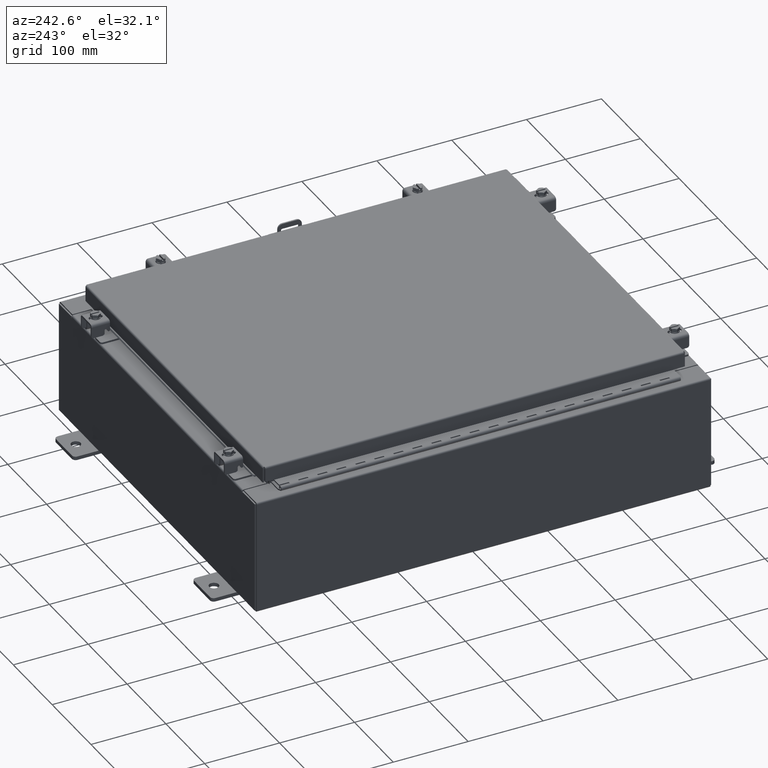
[diagram: clean part render]
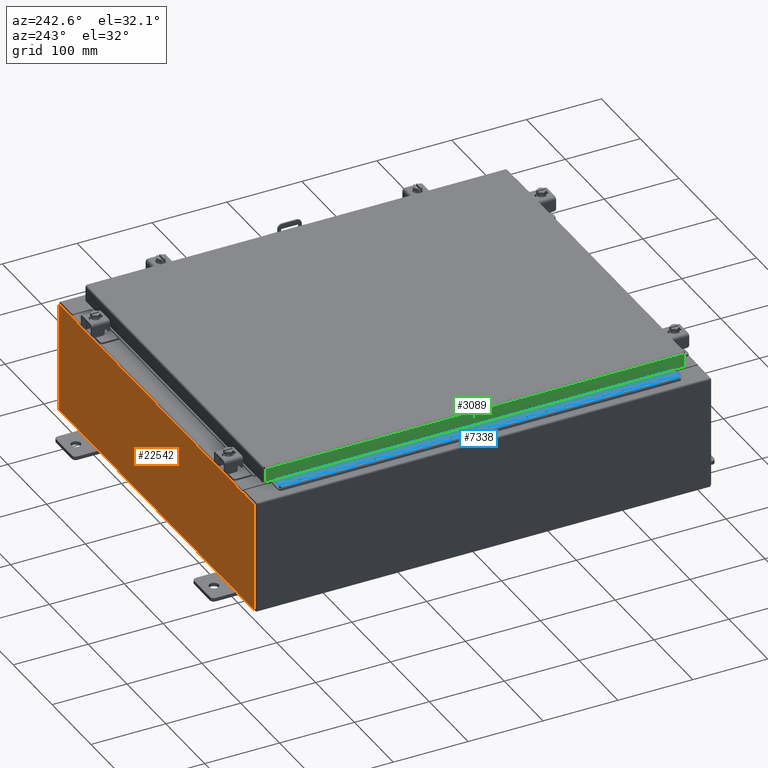
[diagram: same view with three faces highlighted in distinct colors, each labeled with its STEP entity id]
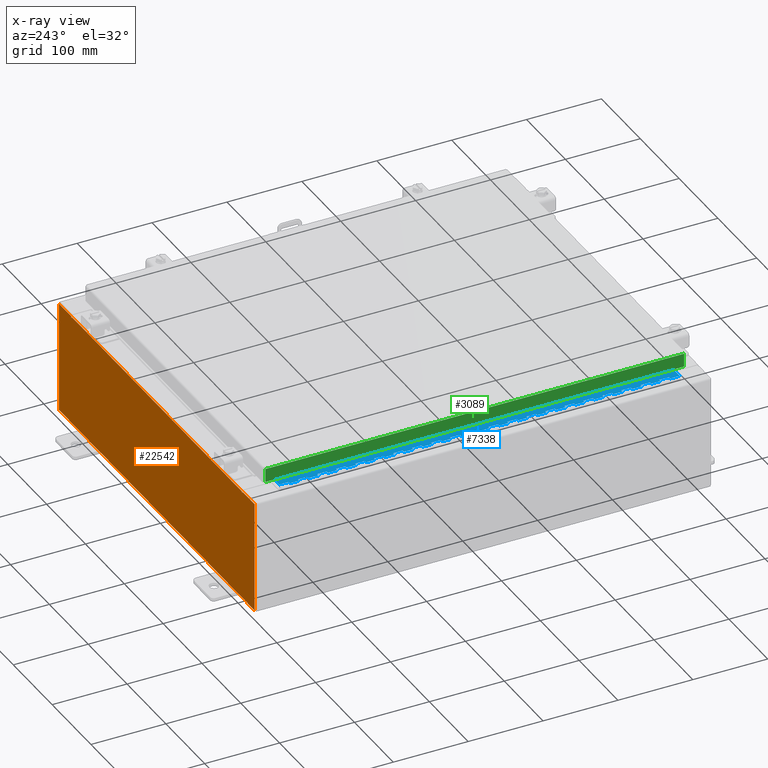
[diagram: x-ray of the same camera — body ghosted, the three highlighted faces saturated]
A machine part, auxiliary view with three faces highlighted in distinct colors.
The next image is the same camera in x-ray (body ghosted, the three faces saturated) — at least one of them is partly hidden behind the body in this view.
Their STEP definitions:

[orange] entity #22542 — the highlighted planar face has unit normal (0, -1, 0).
#87 = CARTESIAN_POINT ( 'NONE',  ( -8.655874999999996400, 0.0000000000000000000, 2.874950000000000600 ) ) ;
#593 = LINE ( 'NONE', #12280, #6540 ) ;
#1762 = CARTESIAN_POINT ( 'NONE',  ( 8.637200000000000000, 0.0000000000000000000, 2.912300000000000600 ) ) ;
#1917 = VERTEX_POINT ( 'NONE', #1762 ) ;
#2005 = LINE ( 'NONE', #16037, #15285 ) ;
#2642 = DIRECTION ( 'NONE',  ( 0.0000000000000000000, 0.0000000000000000000, -1.000000000000000000 ) ) ;
#3344 = EDGE_CURVE ( 'NONE', #14724, #4299, #2005, .T. ) ;
#3608 = ORIENTED_EDGE ( 'NONE', *, *, #23788, .F. ) ;
#4101 = VERTEX_POINT ( 'NONE', #27434 ) ;
#4150 = CARTESIAN_POINT ( 'NONE',  ( -9.925300000000000000, 0.0000000000000000000, -2.925299999999999600 ) ) ;
#4299 = VERTEX_POINT ( 'NONE', #8284 ) ;
#4858 = CARTESIAN_POINT ( 'NONE',  ( 0.0000000000000000000, 0.0000000000000000000, 0.0000000000000000000 ) ) ;
#5003 = DIRECTION ( 'NONE',  ( -0.0000000000000000000, 1.000000000000000000, -0.0000000000000000000 ) ) ;
#6040 = CARTESIAN_POINT ( 'NONE',  ( -9.925300000000000000, 0.0000000000000000000, -2.925299999999999600 ) ) ;
#6540 = VECTOR ( 'NONE', #7257, 39.37007874015748100 ) ;
#6731 = ORIENTED_EDGE ( 'NONE', *, *, #22814, .T. ) ;
#6928 = DIRECTION ( 'NONE',  ( -6.510859170600007400E-014, 0.0000000000000000000, -1.000000000000000000 ) ) ;
#6973 = VERTEX_POINT ( 'NONE', #28479 ) ;
#7065 = VERTEX_POINT ( 'NONE', #15908 ) ;
#7133 = CARTESIAN_POINT ( 'NONE',  ( -9.925300000000000000, 0.0000000000000000000, 2.925300000000000500 ) ) ;
#7223 = VECTOR ( 'NONE', #28270, 39.37007874015748100 ) ;
#7257 = DIRECTION ( 'NONE',  ( 0.0000000000000000000, 0.0000000000000000000, 1.000000000000000000 ) ) ;
#7301 = CARTESIAN_POINT ( 'NONE',  ( 8.655875000000000000, 0.0000000000000000000, 2.874950000000000600 ) ) ;
#7787 = VERTEX_POINT ( 'NONE', #14756 ) ;
#7940 = DIRECTION ( 'NONE',  ( 0.0000000000000000000, 0.0000000000000000000, -1.000000000000000000 ) ) ;
#8080 = VERTEX_POINT ( 'NONE', #24004 ) ;
#8284 = CARTESIAN_POINT ( 'NONE',  ( 8.674550000000000000, 0.0000000000000000000, 2.874950000000000600 ) ) ;
#8478 = ORIENTED_EDGE ( 'NONE', *, *, #17270, .T. ) ;
#8479 = VECTOR ( 'NONE', #28613, 39.37007874015748100 ) ;
#8843 = EDGE_CURVE ( 'NONE', #4299, #6973, #23335, .T. ) ;
#8962 = CARTESIAN_POINT ( 'NONE',  ( -8.674549999999996400, 0.0000000000000000000, 2.874950000000000600 ) ) ;
#9407 = ORIENTED_EDGE ( 'NONE', *, *, #8843, .F. ) ;
#9526 = DIRECTION ( 'NONE',  ( -0.0000000000000000000, -0.0000000000000000000, 1.000000000000000000 ) ) ;
#10742 = CARTESIAN_POINT ( 'NONE',  ( 9.925300000000000000, 0.0000000000000000000, 2.925300000000000500 ) ) ;
#11162 = EDGE_LOOP ( 'NONE', ( #3608, #17014, #19813, #8478, #18411, #9407, #14043, #22837, #27956, #6731, #20201, #22664 ) ) ;
#11956 = AXIS2_PLACEMENT_3D ( 'NONE', #4858, #14905, #32392 ) ;
#12028 = CARTESIAN_POINT ( 'NONE',  ( -9.925300000000000000, 0.0000000000000000000, 2.925300000000000500 ) ) ;
#12036 = VERTEX_POINT ( 'NONE', #20084 ) ;
#12280 = CARTESIAN_POINT ( 'NONE',  ( 8.637200000000000000, 0.0000000000000000000, 0.0000000000000000000 ) ) ;
#13039 = EDGE_CURVE ( 'NONE', #4101, #7787, #27187, .T. ) ;
#13640 = AXIS2_PLACEMENT_3D ( 'NONE', #87, #17629, #2642 ) ;
#14020 = DIRECTION ( 'NONE',  ( 1.000000000000000000, 0.0000000000000000000, 0.0000000000000000000 ) ) ;
#14043 = ORIENTED_EDGE ( 'NONE', *, *, #3344, .F. ) ;
#14101 = LINE ( 'NONE', #12028, #32479 ) ;
#14308 = AXIS2_PLACEMENT_3D ( 'NONE', #7301, #5003, #7940 ) ;
#14439 = DIRECTION ( 'NONE',  ( 0.0000000000000000000, 0.0000000000000000000, 1.000000000000000000 ) ) ;
#14724 = VERTEX_POINT ( 'NONE', #23001 ) ;
#14756 = CARTESIAN_POINT ( 'NONE',  ( 9.925300000000000000, 0.0000000000000000000, -2.925299999999999600 ) ) ;
#14905 = DIRECTION ( 'NONE',  ( 0.0000000000000000000, -1.000000000000000000, 0.0000000000000000000 ) ) ;
#15254 = VECTOR ( 'NONE', #14439, 39.37007874015748100 ) ;
#15285 = VECTOR ( 'NONE', #6928, 39.37007874015748100 ) ;
#15628 = EDGE_CURVE ( 'NONE', #29654, #8080, #14101, .T. ) ;
#15908 = CARTESIAN_POINT ( 'NONE',  ( -8.637199999999996400, 1.024442997624098700E-016, 2.912300000000000600 ) ) ;
#16037 = CARTESIAN_POINT ( 'NONE',  ( 8.674549999999813500, -0.0000000000000000000, -5.647877341832707700E-013 ) ) ;
#16105 = LINE ( 'NONE', #6040, #21194 ) ;
#16595 = DIRECTION ( 'NONE',  ( 1.000000000000000000, 0.0000000000000000000, 0.0000000000000000000 ) ) ;
#17014 = ORIENTED_EDGE ( 'NONE', *, *, #22582, .F. ) ;
#17270 = EDGE_CURVE ( 'NONE', #7065, #1917, #32417, .T. ) ;
#17389 = VECTOR ( 'NONE', #16595, 39.37007874015748100 ) ;
#17629 = DIRECTION ( 'NONE',  ( -0.0000000000000000000, 1.000000000000000000, -0.0000000000000000000 ) ) ;
#18411 = ORIENTED_EDGE ( 'NONE', *, *, #30422, .F. ) ;
#18982 = EDGE_CURVE ( 'NONE', #14724, #4101, #19401, .T. ) ;
#19401 = LINE ( 'NONE', #7133, #26070 ) ;
#19587 = CARTESIAN_POINT ( 'NONE',  ( -8.637199999999996400, -0.0000000000000000000, 2.874950000000000600 ) ) ;
#19813 = ORIENTED_EDGE ( 'NONE', *, *, #30098, .F. ) ;
#20084 = CARTESIAN_POINT ( 'NONE',  ( -8.674549999999996400, 0.0000000000000000000, 2.925300000000000500 ) ) ;
#20201 = ORIENTED_EDGE ( 'NONE', *, *, #15628, .T. ) ;
#21194 = VECTOR ( 'NONE', #30939, 39.37007874015748100 ) ;
#22071 = DIRECTION ( 'NONE',  ( 1.000000000000000000, 0.0000000000000000000, 0.0000000000000000000 ) ) ;
#22394 = FACE_OUTER_BOUND ( 'NONE', #11162, .T. ) ;
#22542 = ADVANCED_FACE ( 'NONE', ( #22394 ), #24865, .F. ) ;
#22582 = EDGE_CURVE ( 'NONE', #23817, #23446, #27510, .T. ) ;
#22664 = ORIENTED_EDGE ( 'NONE', *, *, #31476, .T. ) ;
#22814 = EDGE_CURVE ( 'NONE', #7787, #29654, #16105, .T. ) ;
#22837 = ORIENTED_EDGE ( 'NONE', *, *, #18982, .T. ) ;
#23001 = CARTESIAN_POINT ( 'NONE',  ( 8.674550000000001800, 0.0000000000000000000, 2.925300000000000500 ) ) ;
#23335 = CIRCLE ( 'NONE', #14308, 0.01867500000000003900 ) ;
#23446 = VERTEX_POINT ( 'NONE', #8962 ) ;
#23488 = LINE ( 'NONE', #27031, #15254 ) ;
#23788 = EDGE_CURVE ( 'NONE', #23446, #12036, #23488, .T. ) ;
#23817 = VERTEX_POINT ( 'NONE', #19587 ) ;
#24004 = CARTESIAN_POINT ( 'NONE',  ( -9.925300000000000000, 0.0000000000000000000, 2.925300000000000500 ) ) ;
#24044 = LINE ( 'NONE', #31665, #17389 ) ;
#24865 = PLANE ( 'NONE',  #11956 ) ;
#26070 = VECTOR ( 'NONE', #22071, 39.37007874015748100 ) ;
#26086 = CARTESIAN_POINT ( 'NONE',  ( -8.637199999999996400, -0.0000000000000000000, 0.0000000000000000000 ) ) ;
#26393 = CARTESIAN_POINT ( 'NONE',  ( -8.637200000000000000, 1.024442997624098700E-016, 2.912300000000000600 ) ) ;
#27031 = CARTESIAN_POINT ( 'NONE',  ( -8.674549999999996400, -0.0000000000000000000, 0.0000000000000000000 ) ) ;
#27187 = LINE ( 'NONE', #10742, #7223 ) ;
#27434 = CARTESIAN_POINT ( 'NONE',  ( 9.925300000000000000, 0.0000000000000000000, 2.925300000000000500 ) ) ;
#27510 = CIRCLE ( 'NONE', #13640, 0.01867500000000003900 ) ;
#27956 = ORIENTED_EDGE ( 'NONE', *, *, #13039, .T. ) ;
#28270 = DIRECTION ( 'NONE',  ( 0.0000000000000000000, 0.0000000000000000000, -1.000000000000000000 ) ) ;
#28456 = LINE ( 'NONE', #26086, #8479 ) ;
#28479 = CARTESIAN_POINT ( 'NONE',  ( 8.637200000000000000, 0.0000000000000000000, 2.874950000000000600 ) ) ;
#28613 = DIRECTION ( 'NONE',  ( 0.0000000000000000000, 0.0000000000000000000, -1.000000000000000000 ) ) ;
#29654 = VERTEX_POINT ( 'NONE', #4150 ) ;
#30098 = EDGE_CURVE ( 'NONE', #7065, #23817, #28456, .T. ) ;
#30422 = EDGE_CURVE ( 'NONE', #6973, #1917, #593, .T. ) ;
#30939 = DIRECTION ( 'NONE',  ( -1.000000000000000000, -0.0000000000000000000, -0.0000000000000000000 ) ) ;
#31476 = EDGE_CURVE ( 'NONE', #8080, #12036, #24044, .T. ) ;
#31614 = VECTOR ( 'NONE', #14020, 39.37007874015748100 ) ;
#31665 = CARTESIAN_POINT ( 'NONE',  ( -9.925300000000000000, 0.0000000000000000000, 2.925300000000000500 ) ) ;
#32392 = DIRECTION ( 'NONE',  ( 0.0000000000000000000, -0.0000000000000000000, -1.000000000000000000 ) ) ;
#32417 = LINE ( 'NONE', #26393, #31614 ) ;
#32479 = VECTOR ( 'NONE', #9526, 39.37007874015748100 ) ;

[blue] entity #7338 — the highlighted planar face has unit normal (-0, -0, 1).
#40 = DIRECTION ( 'NONE',  ( 0.0000000000000000000, 0.0000000000000000000, 1.000000000000000000 ) ) ;
#82 = ORIENTED_EDGE ( 'NONE', *, *, #27861, .F. ) ;
#96 = CARTESIAN_POINT ( 'NONE',  ( -0.6869999999999982800, 0.5504999999999997700, -1.000000000000000000 ) ) ;
#120 = EDGE_CURVE ( 'NONE', #27744, #4590, #18174, .T. ) ;
#147 = VERTEX_POINT ( 'NONE', #15455 ) ;
#233 = VECTOR ( 'NONE', #11249, 39.37007874015748100 ) ;
#236 = LINE ( 'NONE', #356, #13595 ) ;
#239 = CARTESIAN_POINT ( 'NONE',  ( -0.6869999999999982800, 0.5504999999999997700, -15.50000000000000000 ) ) ;
#276 = VERTEX_POINT ( 'NONE', #9530 ) ;
#334 = LINE ( 'NONE', #20335, #32066 ) ;
#356 = CARTESIAN_POINT ( 'NONE',  ( -0.6869999999999982800, 0.5504999999999997700, -7.499999999999999100 ) ) ;
#414 = LINE ( 'NONE', #11258, #19640 ) ;
#456 = EDGE_CURVE ( 'NONE', #18487, #12615, #4488, .T. ) ;
#497 = DIRECTION ( 'NONE',  ( 3.389037039080723100E-015, 1.000000000000000000, -0.0000000000000000000 ) ) ;
#505 = VECTOR ( 'NONE', #497, 39.37007874015748100 ) ;
#607 = ORIENTED_EDGE ( 'NONE', *, *, #13742, .T. ) ;
#695 = ORIENTED_EDGE ( 'NONE', *, *, #120, .F. ) ;
#717 = VECTOR ( 'NONE', #746, 39.37007874015748100 ) ;
#746 = DIRECTION ( 'NONE',  ( 0.0000000000000000000, 0.0000000000000000000, 1.000000000000000000 ) ) ;
#748 = VERTEX_POINT ( 'NONE', #13606 ) ;
#753 = VECTOR ( 'NONE', #24388, 39.37007874015748100 ) ;
#868 = VECTOR ( 'NONE', #17874, 39.37007874015748100 ) ;
#877 = VECTOR ( 'NONE', #13446, 39.37007874015748100 ) ;
#949 = CARTESIAN_POINT ( 'NONE',  ( -0.6869999999999973900, 0.8004999999999995500, -3.500000000000000000 ) ) ;
#958 = LINE ( 'NONE', #15386, #26829 ) ;
#1024 = VECTOR ( 'NONE', #13727, 39.37007874015748100 ) ;
#1031 = VECTOR ( 'NONE', #17776, 39.37007874015748100 ) ;
#1056 = EDGE_CURVE ( 'NONE', #12975, #17328, #29926, .T. ) ;
#1104 = LINE ( 'NONE', #3658, #20296 ) ;
#1251 = CARTESIAN_POINT ( 'NONE',  ( -0.6869999999999982800, 0.5504999999999997700, -12.49999999999999800 ) ) ;
#1252 = DIRECTION ( 'NONE',  ( 3.389037039080723100E-015, 1.000000000000000000, -0.0000000000000000000 ) ) ;
#1334 = CARTESIAN_POINT ( 'NONE',  ( -0.6869999999999978300, 0.6754999999999996600, -5.500000000000000000 ) ) ;
#1345 = DIRECTION ( 'NONE',  ( 0.0000000000000000000, 0.0000000000000000000, 1.000000000000000000 ) ) ;
#1425 = LINE ( 'NONE', #11314, #26495 ) ;
#1455 = VERTEX_POINT ( 'NONE', #11444 ) ;
#1468 = CARTESIAN_POINT ( 'NONE',  ( -0.6869999999999982800, 0.5504999999999997700, -8.500000000000000000 ) ) ;
#1495 = LINE ( 'NONE', #7733, #27355 ) ;
#1526 = VECTOR ( 'NONE', #27445, 39.37007874015748100 ) ;
#1568 = DIRECTION ( 'NONE',  ( 0.0000000000000000000, 0.0000000000000000000, 1.000000000000000000 ) ) ;
#1675 = LINE ( 'NONE', #15348, #868 ) ;
#1747 = EDGE_CURVE ( 'NONE', #17697, #25175, #11877, .T. ) ;
#1756 = VERTEX_POINT ( 'NONE', #21776 ) ;
#1772 = DIRECTION ( 'NONE',  ( 3.369016658928398200E-015, 1.000000000000000000, 0.0000000000000000000 ) ) ;
#1799 = EDGE_CURVE ( 'NONE', #10988, #24702, #16961, .T. ) ;
#1820 = CARTESIAN_POINT ( 'NONE',  ( -0.6869999999999978300, 0.6754999999999996600, -20.50000000000000400 ) ) ;
#1824 = LINE ( 'NONE', #11185, #1024 ) ;
#1846 = LINE ( 'NONE', #3717, #6963 ) ;
#2000 = VECTOR ( 'NONE', #20978, 39.37007874015748100 ) ;
#2157 = VERTEX_POINT ( 'NONE', #21013 ) ;
#2287 = VECTOR ( 'NONE', #27740, 39.37007874015748100 ) ;
#2323 = EDGE_CURVE ( 'NONE', #18548, #7597, #21222, .T. ) ;
#2530 = LINE ( 'NONE', #27576, #8407 ) ;
#2631 = ORIENTED_EDGE ( 'NONE', *, *, #11987, .F. ) ;
#2900 = DIRECTION ( 'NONE',  ( 0.0000000000000000000, -0.0000000000000000000, -1.000000000000000000 ) ) ;
#2920 = ORIENTED_EDGE ( 'NONE', *, *, #17971, .F. ) ;
#3076 = VERTEX_POINT ( 'NONE', #12395 ) ;
#3098 = ORIENTED_EDGE ( 'NONE', *, *, #26480, .F. ) ;
#3116 = VERTEX_POINT ( 'NONE', #16482 ) ;
#3135 = CARTESIAN_POINT ( 'NONE',  ( -0.6869999999999973900, 0.8004999999999995500, -9.000000000000000000 ) ) ;
#3246 = ORIENTED_EDGE ( 'NONE', *, *, #24690, .F. ) ;
#3331 = LINE ( 'NONE', #29956, #22503 ) ;
#3358 = VERTEX_POINT ( 'NONE', #4502 ) ;
#3376 = EDGE_CURVE ( 'NONE', #1455, #14155, #21171, .T. ) ;
#3500 = EDGE_CURVE ( 'NONE', #17732, #2157, #18026, .T. ) ;
#3505 = VERTEX_POINT ( 'NONE', #9586 ) ;
#3519 = CARTESIAN_POINT ( 'NONE',  ( -0.6869999999999973900, 0.8004999999999995500, -4.500000000000000000 ) ) ;
#3551 = ORIENTED_EDGE ( 'NONE', *, *, #24807, .T. ) ;
#3658 = CARTESIAN_POINT ( 'NONE',  ( -0.6869999999999973900, 0.8004999999999995500, -16.00000000000000000 ) ) ;
#3704 = CARTESIAN_POINT ( 'NONE',  ( -0.6869999999999982800, 0.5504999999999997700, -0.5000000000000000000 ) ) ;
#3717 = CARTESIAN_POINT ( 'NONE',  ( -0.6869999999999973900, 0.8004999999999995500, -10.00000000000000000 ) ) ;
#3728 = CARTESIAN_POINT ( 'NONE',  ( -0.6869999999999978300, 0.6754999999999996600, -12.99999999999999800 ) ) ;
#3756 = ORIENTED_EDGE ( 'NONE', *, *, #19529, .F. ) ;
#3796 = ORIENTED_EDGE ( 'NONE', *, *, #15586, .F. ) ;
#3801 = CARTESIAN_POINT ( 'NONE',  ( -0.6869999999999998300, 0.07549999999999991400, -21.00000000000000000 ) ) ;
#3927 = ORIENTED_EDGE ( 'NONE', *, *, #27419, .F. ) ;
#3931 = EDGE_CURVE ( 'NONE', #14855, #13788, #12922, .T. ) ;
#4058 = DIRECTION ( 'NONE',  ( 0.0000000000000000000, 0.0000000000000000000, 1.000000000000000000 ) ) ;
#4080 = CARTESIAN_POINT ( 'NONE',  ( -0.6869999999999982800, 0.5504999999999997700, -3.500000000000000000 ) ) ;
#4100 = CARTESIAN_POINT ( 'NONE',  ( -0.6869999999999978300, 0.6754999999999996600, -21.00000000000000000 ) ) ;
#4139 = CARTESIAN_POINT ( 'NONE',  ( -0.6869999999999982800, 0.5504999999999997700, -12.99999999999999800 ) ) ;
#4177 = VERTEX_POINT ( 'NONE', #28962 ) ;
#4225 = VECTOR ( 'NONE', #13908, 39.37007874015748100 ) ;
#4269 = DIRECTION ( 'NONE',  ( 0.0000000000000000000, -0.0000000000000000000, -1.000000000000000000 ) ) ;
#4277 = ORIENTED_EDGE ( 'NONE', *, *, #5701, .T. ) ;
#4396 = DIRECTION ( 'NONE',  ( 0.0000000000000000000, -0.0000000000000000000, -1.000000000000000000 ) ) ;
#4419 = CARTESIAN_POINT ( 'NONE',  ( -0.6869999999999978300, 0.6754999999999996600, -15.50000000000000000 ) ) ;
#4488 = LINE ( 'NONE', #7196, #31056 ) ;
#4502 = CARTESIAN_POINT ( 'NONE',  ( -0.6869999999999978300, 0.6754999999999996600, -1.499999999999999800 ) ) ;
#4590 = VERTEX_POINT ( 'NONE', #9252 ) ;
#4676 = DIRECTION ( 'NONE',  ( 0.0000000000000000000, -0.0000000000000000000, -1.000000000000000000 ) ) ;
#4698 = VECTOR ( 'NONE', #10793, 39.37007874015748100 ) ;
#4701 = EDGE_CURVE ( 'NONE', #30797, #147, #12489, .T. ) ;
#4784 = CARTESIAN_POINT ( 'NONE',  ( -0.6869999999999978300, 0.6754999999999996600, -17.00000000000000000 ) ) ;
#4836 = CARTESIAN_POINT ( 'NONE',  ( -0.6869999999999973900, 0.8004999999999995500, -6.000000000000000900 ) ) ;
#4964 = VECTOR ( 'NONE', #16994, 39.37007874015748100 ) ;
#4966 = CARTESIAN_POINT ( 'NONE',  ( -0.6869999999999982800, 0.5504999999999997700, -8.000000000000000000 ) ) ;
#4991 = LINE ( 'NONE', #30742, #17494 ) ;
#5104 = ORIENTED_EDGE ( 'NONE', *, *, #8510, .F. ) ;
#5124 = ORIENTED_EDGE ( 'NONE', *, *, #8225, .F. ) ;
#5131 = DIRECTION ( 'NONE',  ( 3.389037039080723100E-015, 1.000000000000000000, -0.0000000000000000000 ) ) ;
#5316 = CARTESIAN_POINT ( 'NONE',  ( -0.6869999999999978300, 0.6754999999999996600, -14.99999999999999800 ) ) ;
#5373 = VECTOR ( 'NONE', #21947, 39.37007874015748100 ) ;
#5505 = CARTESIAN_POINT ( 'NONE',  ( -0.6869999999999998300, 0.07549999999999991400, -21.00000000000000000 ) ) ;
#5527 = DIRECTION ( 'NONE',  ( 3.389037039080723100E-015, 1.000000000000000000, -0.0000000000000000000 ) ) ;
#5633 = LINE ( 'NONE', #18301, #12287 ) ;
#5701 = EDGE_CURVE ( 'NONE', #3358, #15494, #4991, .T. ) ;
#5783 = CARTESIAN_POINT ( 'NONE',  ( -0.6870000000000022800, -0.6245000000000003900, 0.0000000000000000000 ) ) ;
#5983 = EDGE_CURVE ( 'NONE', #25398, #30825, #7117, .T. ) ;
#6054 = LINE ( 'NONE', #4836, #17768 ) ;
#6114 = CARTESIAN_POINT ( 'NONE',  ( -0.6869999999999978300, 0.6754999999999996600, -4.500000000000000000 ) ) ;
#6185 = ORIENTED_EDGE ( 'NONE', *, *, #1056, .F. ) ;
#6228 = DIRECTION ( 'NONE',  ( 0.0000000000000000000, 0.0000000000000000000, 1.000000000000000000 ) ) ;
#6270 = VECTOR ( 'NONE', #28569, 39.37007874015748100 ) ;
#6278 = VERTEX_POINT ( 'NONE', #9402 ) ;
#6316 = VERTEX_POINT ( 'NONE', #4139 ) ;
#6359 = VECTOR ( 'NONE', #18710, 39.37007874015748100 ) ;
#6402 = CARTESIAN_POINT ( 'NONE',  ( -0.6869999999999973900, 0.8004999999999995500, -14.49999999999999800 ) ) ;
#6528 = DIRECTION ( 'NONE',  ( 3.389037039080723100E-015, 1.000000000000000000, -0.0000000000000000000 ) ) ;
#6554 = CARTESIAN_POINT ( 'NONE',  ( -0.6869999999999973900, 0.8004999999999995500, -11.00000000000000000 ) ) ;
#6577 = EDGE_CURVE ( 'NONE', #8418, #6316, #23871, .T. ) ;
#6592 = LINE ( 'NONE', #16637, #26536 ) ;
#6604 = DIRECTION ( 'NONE',  ( 0.0000000000000000000, -0.0000000000000000000, -1.000000000000000000 ) ) ;
#6646 = CARTESIAN_POINT ( 'NONE',  ( -0.6869999999999982800, 0.5504999999999997700, -5.000000000000000000 ) ) ;
#6691 = LINE ( 'NONE', #27448, #32487 ) ;
#6694 = VERTEX_POINT ( 'NONE', #20066 ) ;
#6754 = DIRECTION ( 'NONE',  ( 0.0000000000000000000, 0.0000000000000000000, 1.000000000000000000 ) ) ;
#6868 = ORIENTED_EDGE ( 'NONE', *, *, #21237, .F. ) ;
#6913 = CARTESIAN_POINT ( 'NONE',  ( -0.6869999999999982800, 0.5504999999999997700, -8.500000000000000000 ) ) ;
#6933 = CARTESIAN_POINT ( 'NONE',  ( -0.6869999999999973900, 0.8004999999999995500, -5.500000000000000000 ) ) ;
#6963 = VECTOR ( 'NONE', #20458, 39.37007874015748100 ) ;
#6967 = LINE ( 'NONE', #21207, #233 ) ;
#6987 = EDGE_CURVE ( 'NONE', #3505, #11839, #18772, .T. ) ;
#7018 = ORIENTED_EDGE ( 'NONE', *, *, #31682, .F. ) ;
#7084 = VECTOR ( 'NONE', #14424, 39.37007874015748100 ) ;
#7117 = LINE ( 'NONE', #18781, #14527 ) ;
#7193 = CARTESIAN_POINT ( 'NONE',  ( -0.6869999999999973900, 0.8004999999999995500, -0.5000000000000000000 ) ) ;
#7196 = CARTESIAN_POINT ( 'NONE',  ( -0.6869999999999978300, 0.6754999999999996600, -21.00000000000000000 ) ) ;
#7338 = ADVANCED_FACE ( 'NONE', ( #21856 ), #26817, .T. ) ;
#7361 = DIRECTION ( 'NONE',  ( 0.0000000000000000000, -0.0000000000000000000, -1.000000000000000000 ) ) ;
#7377 = CARTESIAN_POINT ( 'NONE',  ( -0.6869999999999982800, 0.5504999999999997700, -11.50000000000000000 ) ) ;
#7397 = LINE ( 'NONE', #25719, #717 ) ;
#7407 = VECTOR ( 'NONE', #32088, 39.37007874015748100 ) ;
#7525 = LINE ( 'NONE', #23480, #13395 ) ;
#7590 = DIRECTION ( 'NONE',  ( 0.0000000000000000000, 0.0000000000000000000, 1.000000000000000000 ) ) ;
#7597 = VERTEX_POINT ( 'NONE', #18282 ) ;
#7677 = CARTESIAN_POINT ( 'NONE',  ( -0.6869999999999982800, 0.5504999999999997700, -2.999999999999999600 ) ) ;
#7719 = EDGE_CURVE ( 'NONE', #23450, #11417, #13224, .T. ) ;
#7733 = CARTESIAN_POINT ( 'NONE',  ( -0.6869999999999982800, 0.5504999999999997700, -0.5000000000000000000 ) ) ;
#7885 = VERTEX_POINT ( 'NONE', #31100 ) ;
#7895 = CARTESIAN_POINT ( 'NONE',  ( -0.6869999999999978300, 0.6754999999999996600, -7.000000000000000000 ) ) ;
#8083 = CARTESIAN_POINT ( 'NONE',  ( -0.6869999999999982800, 0.5504999999999997700, -17.50000000000000000 ) ) ;
#8131 = DIRECTION ( 'NONE',  ( 0.0000000000000000000, -0.0000000000000000000, -1.000000000000000000 ) ) ;
#8165 = ORIENTED_EDGE ( 'NONE', *, *, #29225, .T. ) ;
#8191 = VERTEX_POINT ( 'NONE', #18350 ) ;
#8203 = ORIENTED_EDGE ( 'NONE', *, *, #6987, .F. ) ;
#8225 = EDGE_CURVE ( 'NONE', #748, #8418, #6592, .T. ) ;
#8287 = DIRECTION ( 'NONE',  ( 3.369016658928398200E-015, 1.000000000000000000, 0.0000000000000000000 ) ) ;
#8307 = CARTESIAN_POINT ( 'NONE',  ( -0.6869999999999973900, 0.8004999999999995500, -1.499999999999999800 ) ) ;
#8309 = EDGE_CURVE ( 'NONE', #23669, #22720, #24148, .T. ) ;
#8407 = VECTOR ( 'NONE', #15080, 39.37007874015748100 ) ;
#8418 = VERTEX_POINT ( 'NONE', #1251 ) ;
#8444 = EDGE_CURVE ( 'NONE', #1756, #12615, #27697, .T. ) ;
#8462 = EDGE_CURVE ( 'NONE', #8703, #10210, #1846, .T. ) ;
#8502 = DIRECTION ( 'NONE',  ( 0.0000000000000000000, -0.0000000000000000000, -1.000000000000000000 ) ) ;
#8510 = EDGE_CURVE ( 'NONE', #3358, #3505, #13588, .T. ) ;
#8562 = LINE ( 'NONE', #8578, #21069 ) ;
#8578 = CARTESIAN_POINT ( 'NONE',  ( -0.6869999999999978300, 0.6754999999999996600, -21.00000000000000000 ) ) ;
#8615 = ORIENTED_EDGE ( 'NONE', *, *, #15961, .F. ) ;
#8616 = DIRECTION ( 'NONE',  ( 3.389037039080723100E-015, 1.000000000000000000, -0.0000000000000000000 ) ) ;
#8703 = VERTEX_POINT ( 'NONE', #15577 ) ;
#8709 = EDGE_CURVE ( 'NONE', #31363, #17340, #26508, .T. ) ;
#8713 = VERTEX_POINT ( 'NONE', #22952 ) ;
#8761 = DIRECTION ( 'NONE',  ( 1.000000000000000000, -3.369016658928398200E-015, 0.0000000000000000000 ) ) ;
#8830 = EDGE_CURVE ( 'NONE', #9349, #3076, #18249, .T. ) ;
#8893 = EDGE_CURVE ( 'NONE', #16033, #4590, #9250, .T. ) ;
#9060 = VERTEX_POINT ( 'NONE', #239 ) ;
#9113 = LINE ( 'NONE', #5783, #21607 ) ;
#9125 = ORIENTED_EDGE ( 'NONE', *, *, #13307, .T. ) ;
#9239 = LINE ( 'NONE', #28251, #21743 ) ;
#9250 = LINE ( 'NONE', #30374, #22560 ) ;
#9251 = CARTESIAN_POINT ( 'NONE',  ( -0.6869999999999982800, 0.5504999999999997700, -4.000000000000000000 ) ) ;
#9252 = CARTESIAN_POINT ( 'NONE',  ( -0.6869999999999978300, 0.6754999999999996600, -4.000000000000000000 ) ) ;
#9275 = VERTEX_POINT ( 'NONE', #23782 ) ;
#9349 = VERTEX_POINT ( 'NONE', #6646 ) ;
#9402 = CARTESIAN_POINT ( 'NONE',  ( -0.6869999999999982800, 0.5504999999999997700, -6.499999999999999100 ) ) ;
#9479 = CARTESIAN_POINT ( 'NONE',  ( -0.6869999999999978300, 0.6754999999999996600, -17.50000000000000000 ) ) ;
#9530 = CARTESIAN_POINT ( 'NONE',  ( -0.6869999999999978300, 0.6754999999999996600, -10.50000000000000000 ) ) ;
#9553 = DIRECTION ( 'NONE',  ( 3.389037039080723100E-015, 1.000000000000000000, -0.0000000000000000000 ) ) ;
#9569 = CARTESIAN_POINT ( 'NONE',  ( -0.6869999999999982800, 0.5504999999999997700, -14.49999999999999800 ) ) ;
#9586 = CARTESIAN_POINT ( 'NONE',  ( -0.6869999999999982800, 0.5504999999999997700, -1.499999999999999800 ) ) ;
#9748 = CARTESIAN_POINT ( 'NONE',  ( -0.6869999999999973900, 0.8004999999999995500, -19.00000000000000000 ) ) ;
#9773 = EDGE_CURVE ( 'NONE', #25691, #15178, #3331, .T. ) ;
#9807 = VERTEX_POINT ( 'NONE', #14975 ) ;
#9820 = EDGE_CURVE ( 'NONE', #12654, #14155, #2530, .T. ) ;
#10093 = DIRECTION ( 'NONE',  ( 0.0000000000000000000, 0.0000000000000000000, 1.000000000000000000 ) ) ;
#10140 = VERTEX_POINT ( 'NONE', #1820 ) ;
#10210 = VERTEX_POINT ( 'NONE', #19649 ) ;
#10374 = CARTESIAN_POINT ( 'NONE',  ( -0.6870000000000022800, -0.6245000000000003900, -21.00000000000000000 ) ) ;
#10525 = LINE ( 'NONE', #18233, #4698 ) ;
#10549 = CARTESIAN_POINT ( 'NONE',  ( -0.6869999999999973900, 0.8004999999999995500, -20.50000000000000400 ) ) ;
#10583 = LINE ( 'NONE', #6402, #23125 ) ;
#10604 = CARTESIAN_POINT ( 'NONE',  ( -0.6869999999999978300, 0.6754999999999996600, -2.999999999999999600 ) ) ;
#10643 = ORIENTED_EDGE ( 'NONE', *, *, #25718, .F. ) ;
#10662 = CARTESIAN_POINT ( 'NONE',  ( -0.6869999999999973900, 0.8004999999999995500, -9.500000000000000000 ) ) ;
#10793 = DIRECTION ( 'NONE',  ( -3.389037039080723100E-015, -1.000000000000000000, 0.0000000000000000000 ) ) ;
#10808 = LINE ( 'NONE', #27668, #29985 ) ;
#10820 = LINE ( 'NONE', #22386, #30002 ) ;
#10863 = CARTESIAN_POINT ( 'NONE',  ( -0.6869999999999982800, 0.5504999999999997700, -7.000000000000000000 ) ) ;
#10881 = VERTEX_POINT ( 'NONE', #14791 ) ;
#10988 = VERTEX_POINT ( 'NONE', #25180 ) ;
#11035 = LINE ( 'NONE', #15347, #30217 ) ;
#11185 = CARTESIAN_POINT ( 'NONE',  ( -0.6869999999999973900, 0.8004999999999995500, -8.500000000000000000 ) ) ;
#11218 = VECTOR ( 'NONE', #4058, 39.37007874015748100 ) ;
#11233 = CARTESIAN_POINT ( 'NONE',  ( -0.6869999999999982800, 0.5504999999999997700, -9.500000000000000000 ) ) ;
#11249 = DIRECTION ( 'NONE',  ( -3.389037039080723100E-015, -1.000000000000000000, 0.0000000000000000000 ) ) ;
#11258 = CARTESIAN_POINT ( 'NONE',  ( -0.6869999999999982800, 0.5504999999999997700, -18.50000000000000000 ) ) ;
#11291 = VERTEX_POINT ( 'NONE', #4419 ) ;
#11307 = LINE ( 'NONE', #7193, #23838 ) ;
#11314 = CARTESIAN_POINT ( 'NONE',  ( -0.6869999999999973900, 0.8004999999999995500, -2.999999999999999600 ) ) ;
#11404 = LINE ( 'NONE', #4080, #17275 ) ;
#11417 = VERTEX_POINT ( 'NONE', #32486 ) ;
#11444 = CARTESIAN_POINT ( 'NONE',  ( -0.6869999999999982800, 0.5504999999999997700, -11.00000000000000000 ) ) ;
#11527 = VECTOR ( 'NONE', #15413, 39.37007874015748100 ) ;
#11736 = CARTESIAN_POINT ( 'NONE',  ( -0.6869999999999973900, 0.8004999999999995500, -17.50000000000000000 ) ) ;
#11830 = VECTOR ( 'NONE', #6228, 39.37007874015748100 ) ;
#11839 = VERTEX_POINT ( 'NONE', #21829 ) ;
#11877 = LINE ( 'NONE', #24452, #23614 ) ;
#11898 = LINE ( 'NONE', #24899, #24421 ) ;
#11930 = ORIENTED_EDGE ( 'NONE', *, *, #28934, .T. ) ;
#11987 = EDGE_CURVE ( 'NONE', #24702, #30825, #26727, .T. ) ;
#12068 = CARTESIAN_POINT ( 'NONE',  ( -0.6869999999999982800, 0.5504999999999997700, -6.499999999999999100 ) ) ;
#12119 = ORIENTED_EDGE ( 'NONE', *, *, #8830, .F. ) ;
#12135 = ORIENTED_EDGE ( 'NONE', *, *, #31726, .T. ) ;
#12143 = EDGE_CURVE ( 'NONE', #14855, #10988, #11035, .T. ) ;
#12261 = EDGE_CURVE ( 'NONE', #17697, #32124, #12987, .T. ) ;
#12279 = CARTESIAN_POINT ( 'NONE',  ( -0.6869999999999982800, 0.5504999999999997700, -10.50000000000000000 ) ) ;
#12286 = CARTESIAN_POINT ( 'NONE',  ( -0.6869999999999973900, 0.8004999999999995500, -4.000000000000000000 ) ) ;
#12287 = VECTOR ( 'NONE', #25757, 39.37007874015748100 ) ;
#12328 = ORIENTED_EDGE ( 'NONE', *, *, #12449, .F. ) ;
#12363 = ORIENTED_EDGE ( 'NONE', *, *, #20203, .F. ) ;
#12395 = CARTESIAN_POINT ( 'NONE',  ( -0.6869999999999978300, 0.6754999999999996600, -5.000000000000000000 ) ) ;
#12449 = EDGE_CURVE ( 'NONE', #18487, #17810, #25901, .T. ) ;
#12486 = VECTOR ( 'NONE', #5527, 39.37007874015748100 ) ;
#12489 = LINE ( 'NONE', #26960, #25012 ) ;
#12511 = ORIENTED_EDGE ( 'NONE', *, *, #28346, .T. ) ;
#12539 = EDGE_CURVE ( 'NONE', #15259, #10881, #16094, .T. ) ;
#12590 = VECTOR ( 'NONE', #30675, 39.37007874015748100 ) ;
#12601 = CARTESIAN_POINT ( 'NONE',  ( -0.6869999999999978300, 0.6754999999999996600, -21.00000000000000000 ) ) ;
#12615 = VERTEX_POINT ( 'NONE', #14081 ) ;
#12654 = VERTEX_POINT ( 'NONE', #31655 ) ;
#12793 = VECTOR ( 'NONE', #28069, 39.37007874015748100 ) ;
#12824 = ORIENTED_EDGE ( 'NONE', *, *, #20290, .F. ) ;
#12874 = EDGE_CURVE ( 'NONE', #14444, #27876, #25229, .T. ) ;
#12895 = CARTESIAN_POINT ( 'NONE',  ( -0.6869999999999978300, 0.6754999999999996600, -21.00000000000000000 ) ) ;
#12910 = ORIENTED_EDGE ( 'NONE', *, *, #5983, .T. ) ;
#12922 = LINE ( 'NONE', #28815, #18799 ) ;
#12923 = ORIENTED_EDGE ( 'NONE', *, *, #3376, .F. ) ;
#12956 = CARTESIAN_POINT ( 'NONE',  ( -0.6869999999999973900, 0.8004999999999995500, -17.00000000000000000 ) ) ;
#12975 = VERTEX_POINT ( 'NONE', #27940 ) ;
#12987 = LINE ( 'NONE', #15792, #25521 ) ;
#13063 = ORIENTED_EDGE ( 'NONE', *, *, #8462, .F. ) ;
#13064 = CARTESIAN_POINT ( 'NONE',  ( -0.6869999999999982800, 0.5504999999999997700, -4.500000000000000000 ) ) ;
#13106 = DIRECTION ( 'NONE',  ( 3.389037039080723100E-015, 1.000000000000000000, -0.0000000000000000000 ) ) ;
#13195 = VERTEX_POINT ( 'NONE', #1334 ) ;
#13224 = LINE ( 'NONE', #29126, #25763 ) ;
#13307 = EDGE_CURVE ( 'NONE', #15259, #20756, #31831, .T. ) ;
#13317 = CARTESIAN_POINT ( 'NONE',  ( -0.6869999999999978300, 0.6754999999999996600, -11.00000000000000000 ) ) ;
#13395 = VECTOR ( 'NONE', #8502, 39.37007874015748100 ) ;
#13446 = DIRECTION ( 'NONE',  ( 0.0000000000000000000, 0.0000000000000000000, 1.000000000000000000 ) ) ;
#13472 = ORIENTED_EDGE ( 'NONE', *, *, #8444, .F. ) ;
#13503 = VECTOR ( 'NONE', #30361, 39.37007874015748100 ) ;
#13529 = CARTESIAN_POINT ( 'NONE',  ( -0.6869999999999973900, 0.8004999999999995500, -20.00000000000000000 ) ) ;
#13588 = LINE ( 'NONE', #8307, #5373 ) ;
#13594 = CARTESIAN_POINT ( 'NONE',  ( -0.6869999999999982800, 0.5504999999999997700, -1.499999999999999800 ) ) ;
#13595 = VECTOR ( 'NONE', #2900, 39.37007874015748100 ) ;
#13606 = CARTESIAN_POINT ( 'NONE',  ( -0.6869999999999978300, 0.6754999999999996600, -12.49999999999999800 ) ) ;
#13607 = CARTESIAN_POINT ( 'NONE',  ( -0.6869999999999982800, 0.5504999999999997700, -14.49999999999999800 ) ) ;
#13630 = DIRECTION ( 'NONE',  ( -3.389037039080723100E-015, -1.000000000000000000, 0.0000000000000000000 ) ) ;
#13726 = DIRECTION ( 'NONE',  ( 3.389037039080723100E-015, 1.000000000000000000, -0.0000000000000000000 ) ) ;
#13727 = DIRECTION ( 'NONE',  ( -3.389037039080723100E-015, -1.000000000000000000, 0.0000000000000000000 ) ) ;
#13742 = EDGE_CURVE ( 'NONE', #13195, #3076, #14221, .T. ) ;
#13788 = VERTEX_POINT ( 'NONE', #3728 ) ;
#13800 = DIRECTION ( 'NONE',  ( 0.0000000000000000000, -0.0000000000000000000, -1.000000000000000000 ) ) ;
#13842 = CARTESIAN_POINT ( 'NONE',  ( -0.6869999999999982800, 0.5504999999999997700, -4.500000000000000000 ) ) ;
#13908 = DIRECTION ( 'NONE',  ( 3.389037039080723100E-015, 1.000000000000000000, -0.0000000000000000000 ) ) ;
#13942 = CARTESIAN_POINT ( 'NONE',  ( -0.6869999999999982800, 0.5504999999999997700, -7.499999999999999100 ) ) ;
#14065 = LINE ( 'NONE', #3519, #31643 ) ;
#14074 = LINE ( 'NONE', #9569, #7407 ) ;
#14081 = CARTESIAN_POINT ( 'NONE',  ( -0.6869999999999978300, 0.6754999999999996600, -9.000000000000000000 ) ) ;
#14129 = EDGE_CURVE ( 'NONE', #10881, #2157, #9113, .T. ) ;
#14155 = VERTEX_POINT ( 'NONE', #13317 ) ;
#14179 = EDGE_CURVE ( 'NONE', #19374, #21841, #7525, .T. ) ;
#14216 = EDGE_CURVE ( 'NONE', #26722, #18447, #25926, .T. ) ;
#14221 = LINE ( 'NONE', #25928, #877 ) ;
#14245 = EDGE_CURVE ( 'NONE', #23450, #17134, #26721, .T. ) ;
#14262 = DIRECTION ( 'NONE',  ( -3.389037039080723100E-015, -1.000000000000000000, 0.0000000000000000000 ) ) ;
#14335 = LINE ( 'NONE', #29791, #25286 ) ;
#14378 = VECTOR ( 'NONE', #26648, 39.37007874015748100 ) ;
#14424 = DIRECTION ( 'NONE',  ( 0.0000000000000000000, -0.0000000000000000000, -1.000000000000000000 ) ) ;
#14444 = VERTEX_POINT ( 'NONE', #9479 ) ;
#14477 = LINE ( 'NONE', #13064, #20351 ) ;
#14524 = VECTOR ( 'NONE', #9553, 39.37007874015748100 ) ;
#14527 = VECTOR ( 'NONE', #18731, 39.37007874015748100 ) ;
#14578 = VECTOR ( 'NONE', #18265, 39.37007874015748100 ) ;
#14582 = DIRECTION ( 'NONE',  ( 0.0000000000000000000, -0.0000000000000000000, -1.000000000000000000 ) ) ;
#14740 = VECTOR ( 'NONE', #4396, 39.37007874015748100 ) ;
#14781 = ORIENTED_EDGE ( 'NONE', *, *, #1747, .T. ) ;
#14791 = CARTESIAN_POINT ( 'NONE',  ( -0.6869999999999998300, 0.07549999999999991400, 0.0000000000000000000 ) ) ;
#14830 = VERTEX_POINT ( 'NONE', #13607 ) ;
#14855 = VERTEX_POINT ( 'NONE', #18629 ) ;
#14875 = LINE ( 'NONE', #6933, #753 ) ;
#14926 = EDGE_CURVE ( 'NONE', #15042, #24647, #20399, .T. ) ;
#14975 = CARTESIAN_POINT ( 'NONE',  ( -0.6869999999999982800, 0.5504999999999997700, -20.50000000000000400 ) ) ;
#15042 = VERTEX_POINT ( 'NONE', #24304 ) ;
#15080 = DIRECTION ( 'NONE',  ( 0.0000000000000000000, 0.0000000000000000000, 1.000000000000000000 ) ) ;
#15140 = DIRECTION ( 'NONE',  ( 0.0000000000000000000, 0.0000000000000000000, 1.000000000000000000 ) ) ;
#15178 = VERTEX_POINT ( 'NONE', #7677 ) ;
#15204 = ORIENTED_EDGE ( 'NONE', *, *, #30560, .F. ) ;
#15259 = VERTEX_POINT ( 'NONE', #5505 ) ;
#15262 = CARTESIAN_POINT ( 'NONE',  ( -0.6869999999999973900, 0.8004999999999995500, -2.500000000000000000 ) ) ;
#15335 = ORIENTED_EDGE ( 'NONE', *, *, #8709, .F. ) ;
#15347 = CARTESIAN_POINT ( 'NONE',  ( -0.6869999999999973900, 0.8004999999999995500, -13.50000000000000000 ) ) ;
#15348 = CARTESIAN_POINT ( 'NONE',  ( -0.6869999999999978300, 0.6754999999999996600, -21.00000000000000000 ) ) ;
#15360 = VERTEX_POINT ( 'NONE', #30942 ) ;
#15386 = CARTESIAN_POINT ( 'NONE',  ( -0.6869999999999973900, 0.8004999999999995500, -11.99999999999999800 ) ) ;
#15413 = DIRECTION ( 'NONE',  ( 3.389037039080723100E-015, 1.000000000000000000, -0.0000000000000000000 ) ) ;
#15455 = CARTESIAN_POINT ( 'NONE',  ( -0.6869999999999982800, 0.5504999999999997700, -18.50000000000000000 ) ) ;
#15494 = VERTEX_POINT ( 'NONE', #21435 ) ;
#15577 = CARTESIAN_POINT ( 'NONE',  ( -0.6869999999999982800, 0.5504999999999997700, -10.00000000000000000 ) ) ;
#15586 = EDGE_CURVE ( 'NONE', #13195, #19374, #14875, .T. ) ;
#15655 = VERTEX_POINT ( 'NONE', #29641 ) ;
#15661 = VECTOR ( 'NONE', #4269, 39.37007874015748100 ) ;
#15718 = DIRECTION ( 'NONE',  ( 3.369016658928398200E-015, 1.000000000000000000, 0.0000000000000000000 ) ) ;
#15792 = CARTESIAN_POINT ( 'NONE',  ( -0.6869999999999973900, 0.8004999999999995500, -7.499999999999999100 ) ) ;
#15831 = EDGE_CURVE ( 'NONE', #276, #25023, #334, .T. ) ;
#15839 = CARTESIAN_POINT ( 'NONE',  ( -0.6869999999999978300, 0.6754999999999996600, -6.000000000000000900 ) ) ;
#15855 = CARTESIAN_POINT ( 'NONE',  ( -0.6869999999999973900, 0.8004999999999995500, -8.000000000000000000 ) ) ;
#15961 = EDGE_CURVE ( 'NONE', #11291, #9060, #10525, .T. ) ;
#16033 = VERTEX_POINT ( 'NONE', #6114 ) ;
#16051 = VERTEX_POINT ( 'NONE', #3704 ) ;
#16094 = LINE ( 'NONE', #3801, #22754 ) ;
#16124 = DIRECTION ( 'NONE',  ( 0.0000000000000000000, -0.0000000000000000000, -1.000000000000000000 ) ) ;
#16126 = ORIENTED_EDGE ( 'NONE', *, *, #31929, .T. ) ;
#16153 = CARTESIAN_POINT ( 'NONE',  ( -0.6869999999999982800, 0.5504999999999997700, -17.50000000000000000 ) ) ;
#16346 = EDGE_CURVE ( 'NONE', #15360, #6278, #6691, .T. ) ;
#16482 = CARTESIAN_POINT ( 'NONE',  ( -0.6869999999999978300, 0.6754999999999996600, -11.99999999999999800 ) ) ;
#16509 = EDGE_CURVE ( 'NONE', #32093, #9349, #14477, .T. ) ;
#16637 = CARTESIAN_POINT ( 'NONE',  ( -0.6869999999999973900, 0.8004999999999995500, -12.49999999999999800 ) ) ;
#16748 = CARTESIAN_POINT ( 'NONE',  ( -0.6869999999999978300, 0.6754999999999996600, -14.00000000000000000 ) ) ;
#16751 = EDGE_CURVE ( 'NONE', #14830, #15042, #14074, .T. ) ;
#16752 = CARTESIAN_POINT ( 'NONE',  ( -0.6869999999999982800, 0.5504999999999997700, -19.50000000000000000 ) ) ;
#16863 = CARTESIAN_POINT ( 'NONE',  ( -0.6869999999999982800, 0.5504999999999997700, -21.00000000000000000 ) ) ;
#16865 = CARTESIAN_POINT ( 'NONE',  ( -0.6869999999999982800, 0.5504999999999997700, -17.99999999999999600 ) ) ;
#16961 = LINE ( 'NONE', #28884, #22026 ) ;
#16980 = VECTOR ( 'NONE', #15140, 39.37007874015748100 ) ;
#16994 = DIRECTION ( 'NONE',  ( 3.389037039080723100E-015, 1.000000000000000000, -0.0000000000000000000 ) ) ;
#17134 = VERTEX_POINT ( 'NONE', #18609 ) ;
#17275 = VECTOR ( 'NONE', #6604, 39.37007874015748100 ) ;
#17282 = DIRECTION ( 'NONE',  ( 3.389037039080723100E-015, 1.000000000000000000, -0.0000000000000000000 ) ) ;
#17328 = VERTEX_POINT ( 'NONE', #16752 ) ;
#17337 = CARTESIAN_POINT ( 'NONE',  ( -0.6869999999999973900, 0.8004999999999995500, -14.00000000000000000 ) ) ;
#17340 = VERTEX_POINT ( 'NONE', #16865 ) ;
#17488 = ORIENTED_EDGE ( 'NONE', *, *, #14926, .F. ) ;
#17494 = VECTOR ( 'NONE', #6754, 39.37007874015748100 ) ;
#17684 = ORIENTED_EDGE ( 'NONE', *, *, #24550, .F. ) ;
#17697 = VERTEX_POINT ( 'NONE', #28438 ) ;
#17732 = VERTEX_POINT ( 'NONE', #28549 ) ;
#17768 = VECTOR ( 'NONE', #17282, 39.37007874015748100 ) ;
#17773 = VECTOR ( 'NONE', #7590, 39.37007874015748100 ) ;
#17776 = DIRECTION ( 'NONE',  ( -3.389037039080723100E-015, -1.000000000000000000, 0.0000000000000000000 ) ) ;
#17810 = VERTEX_POINT ( 'NONE', #11233 ) ;
#17871 = LINE ( 'NONE', #19017, #11218 ) ;
#17874 = DIRECTION ( 'NONE',  ( 0.0000000000000000000, 0.0000000000000000000, 1.000000000000000000 ) ) ;
#17967 = LINE ( 'NONE', #20093, #24634 ) ;
#17971 = EDGE_CURVE ( 'NONE', #32124, #18548, #236, .T. ) ;
#17987 = ORIENTED_EDGE ( 'NONE', *, *, #12874, .T. ) ;
#18026 = LINE ( 'NONE', #12601, #30537 ) ;
#18096 = DIRECTION ( 'NONE',  ( 0.0000000000000000000, 0.0000000000000000000, 1.000000000000000000 ) ) ;
#18097 = ORIENTED_EDGE ( 'NONE', *, *, #9820, .T. ) ;
#18174 = LINE ( 'NONE', #12286, #11527 ) ;
#18233 = CARTESIAN_POINT ( 'NONE',  ( -0.6869999999999973900, 0.8004999999999995500, -15.50000000000000000 ) ) ;
#18249 = LINE ( 'NONE', #23179, #4964 ) ;
#18265 = DIRECTION ( 'NONE',  ( 3.389037039080723100E-015, 1.000000000000000000, -0.0000000000000000000 ) ) ;
#18282 = CARTESIAN_POINT ( 'NONE',  ( -0.6869999999999978300, 0.6754999999999996600, -8.000000000000000000 ) ) ;
#18301 = CARTESIAN_POINT ( 'NONE',  ( -0.6869999999999978300, 0.6754999999999996600, -21.00000000000000000 ) ) ;
#18335 = LINE ( 'NONE', #12956, #12486 ) ;
#18350 = CARTESIAN_POINT ( 'NONE',  ( -0.6869999999999982800, 0.5504999999999997700, -11.50000000000000000 ) ) ;
#18370 = DIRECTION ( 'NONE',  ( 0.0000000000000000000, -0.0000000000000000000, -1.000000000000000000 ) ) ;
#18447 = VERTEX_POINT ( 'NONE', #21905 ) ;
#18465 = EDGE_CURVE ( 'NONE', #6278, #22186, #29241, .T. ) ;
#18487 = VERTEX_POINT ( 'NONE', #24646 ) ;
#18548 = VERTEX_POINT ( 'NONE', #4966 ) ;
#18585 = LINE ( 'NONE', #28095, #25242 ) ;
#18609 = CARTESIAN_POINT ( 'NONE',  ( -0.6869999999999978300, 0.6754999999999996600, -16.00000000000000000 ) ) ;
#18629 = CARTESIAN_POINT ( 'NONE',  ( -0.6869999999999978300, 0.6754999999999996600, -13.50000000000000000 ) ) ;
#18710 = DIRECTION ( 'NONE',  ( 0.0000000000000000000, 0.0000000000000000000, 1.000000000000000000 ) ) ;
#18715 = VERTEX_POINT ( 'NONE', #10604 ) ;
#18731 = DIRECTION ( 'NONE',  ( 0.0000000000000000000, 0.0000000000000000000, 1.000000000000000000 ) ) ;
#18749 = ORIENTED_EDGE ( 'NONE', *, *, #16346, .F. ) ;
#18772 = LINE ( 'NONE', #13594, #6270 ) ;
#18781 = CARTESIAN_POINT ( 'NONE',  ( -0.6869999999999978300, 0.6754999999999996600, -21.00000000000000000 ) ) ;
#18799 = VECTOR ( 'NONE', #21234, 39.37007874015748100 ) ;
#18856 = ORIENTED_EDGE ( 'NONE', *, *, #28845, .F. ) ;
#18949 = CARTESIAN_POINT ( 'NONE',  ( -0.6869999999999973900, 0.8004999999999995500, -14.99999999999999800 ) ) ;
#19017 = CARTESIAN_POINT ( 'NONE',  ( -0.6869999999999978300, 0.6754999999999996600, -21.00000000000000000 ) ) ;
#19079 = AXIS2_PLACEMENT_3D ( 'NONE', #10374, #8761, #15718 ) ;
#19265 = VECTOR ( 'NONE', #8616, 39.37007874015748100 ) ;
#19300 = LINE ( 'NONE', #11736, #31811 ) ;
#19374 = VERTEX_POINT ( 'NONE', #31901 ) ;
#19526 = VECTOR ( 'NONE', #4676, 39.37007874015748100 ) ;
#19529 = EDGE_CURVE ( 'NONE', #9807, #20756, #10820, .T. ) ;
#19636 = EDGE_CURVE ( 'NONE', #30359, #25691, #27685, .T. ) ;
#19640 = VECTOR ( 'NONE', #13800, 39.37007874015748100 ) ;
#19644 = CARTESIAN_POINT ( 'NONE',  ( -0.6869999999999982800, 0.5504999999999997700, -16.50000000000000000 ) ) ;
#19649 = CARTESIAN_POINT ( 'NONE',  ( -0.6869999999999978300, 0.6754999999999996600, -10.00000000000000000 ) ) ;
#19715 = EDGE_CURVE ( 'NONE', #10140, #9807, #26895, .T. ) ;
#19732 = LINE ( 'NONE', #23064, #505 ) ;
#19879 = DIRECTION ( 'NONE',  ( 0.0000000000000000000, -0.0000000000000000000, -1.000000000000000000 ) ) ;
#19907 = ORIENTED_EDGE ( 'NONE', *, *, #12261, .F. ) ;
#19911 = EDGE_CURVE ( 'NONE', #15178, #18715, #1425, .T. ) ;
#20063 = VECTOR ( 'NONE', #27333, 39.37007874015748100 ) ;
#20066 = CARTESIAN_POINT ( 'NONE',  ( -0.6869999999999978300, 0.6754999999999996600, -3.500000000000000000 ) ) ;
#20093 = CARTESIAN_POINT ( 'NONE',  ( -0.6869999999999973900, 0.8004999999999995500, -7.000000000000000000 ) ) ;
#20152 = LINE ( 'NONE', #12895, #13503 ) ;
#20203 = EDGE_CURVE ( 'NONE', #17810, #8703, #14335, .T. ) ;
#20275 = ORIENTED_EDGE ( 'NONE', *, *, #30148, .F. ) ;
#20279 = VERTEX_POINT ( 'NONE', #96 ) ;
#20290 = EDGE_CURVE ( 'NONE', #11839, #22423, #23706, .T. ) ;
#20296 = VECTOR ( 'NONE', #13726, 39.37007874015748100 ) ;
#20307 = LINE ( 'NONE', #19644, #19526 ) ;
#20335 = CARTESIAN_POINT ( 'NONE',  ( -0.6869999999999973900, 0.8004999999999995500, -10.50000000000000000 ) ) ;
#20351 = VECTOR ( 'NONE', #8131, 39.37007874015748100 ) ;
#20399 = LINE ( 'NONE', #18949, #25489 ) ;
#20411 = DIRECTION ( 'NONE',  ( -3.389037039080723100E-015, -1.000000000000000000, 0.0000000000000000000 ) ) ;
#20458 = DIRECTION ( 'NONE',  ( 3.389037039080723100E-015, 1.000000000000000000, -0.0000000000000000000 ) ) ;
#20609 = CARTESIAN_POINT ( 'NONE',  ( -0.6869999999999982800, 0.5504999999999997700, -14.00000000000000000 ) ) ;
#20756 = VERTEX_POINT ( 'NONE', #16863 ) ;
#20842 = DIRECTION ( 'NONE',  ( -3.389037039080723100E-015, -1.000000000000000000, 0.0000000000000000000 ) ) ;
#20855 = ORIENTED_EDGE ( 'NONE', *, *, #18465, .F. ) ;
#20978 = DIRECTION ( 'NONE',  ( -3.389037039080723100E-015, -1.000000000000000000, 0.0000000000000000000 ) ) ;
#21013 = CARTESIAN_POINT ( 'NONE',  ( -0.6869999999999978300, 0.6754999999999996600, 0.0000000000000000000 ) ) ;
#21069 = VECTOR ( 'NONE', #31075, 39.37007874015748100 ) ;
#21171 = LINE ( 'NONE', #6554, #14524 ) ;
#21207 = CARTESIAN_POINT ( 'NONE',  ( -0.6869999999999973900, 0.8004999999999995500, -11.50000000000000000 ) ) ;
#21214 = CARTESIAN_POINT ( 'NONE',  ( -0.6869999999999978300, 0.6754999999999996600, -21.00000000000000000 ) ) ;
#21222 = LINE ( 'NONE', #15855, #14578 ) ;
#21234 = DIRECTION ( 'NONE',  ( 0.0000000000000000000, 0.0000000000000000000, 1.000000000000000000 ) ) ;
#21237 = EDGE_CURVE ( 'NONE', #21841, #23280, #6054, .T. ) ;
#21271 = DIRECTION ( 'NONE',  ( 0.0000000000000000000, 0.0000000000000000000, 1.000000000000000000 ) ) ;
#21379 = ORIENTED_EDGE ( 'NONE', *, *, #31226, .F. ) ;
#21392 = LINE ( 'NONE', #6913, #14740 ) ;
#21425 = EDGE_CURVE ( 'NONE', #17340, #7885, #19732, .T. ) ;
#21435 = CARTESIAN_POINT ( 'NONE',  ( -0.6869999999999978300, 0.6754999999999996600, -1.000000000000000000 ) ) ;
#21607 = VECTOR ( 'NONE', #8287, 39.37007874015748100 ) ;
#21743 = VECTOR ( 'NONE', #30730, 39.37007874015748100 ) ;
#21776 = CARTESIAN_POINT ( 'NONE',  ( -0.6869999999999982800, 0.5504999999999997700, -9.000000000000000000 ) ) ;
#21784 = ORIENTED_EDGE ( 'NONE', *, *, #3931, .T. ) ;
#21829 = CARTESIAN_POINT ( 'NONE',  ( -0.6869999999999982800, 0.5504999999999997700, -2.000000000000000000 ) ) ;
#21841 = VERTEX_POINT ( 'NONE', #27110 ) ;
#21856 = FACE_OUTER_BOUND ( 'NONE', #31366, .T. ) ;
#21905 = CARTESIAN_POINT ( 'NONE',  ( -0.6869999999999978300, 0.6754999999999996600, -20.00000000000000000 ) ) ;
#21943 = LINE ( 'NONE', #949, #2000 ) ;
#21947 = DIRECTION ( 'NONE',  ( -3.389037039080723100E-015, -1.000000000000000000, 0.0000000000000000000 ) ) ;
#21984 = ORIENTED_EDGE ( 'NONE', *, *, #23308, .F. ) ;
#22026 = VECTOR ( 'NONE', #18370, 39.37007874015748100 ) ;
#22045 = EDGE_CURVE ( 'NONE', #276, #10210, #1675, .T. ) ;
#22072 = ORIENTED_EDGE ( 'NONE', *, *, #3500, .T. ) ;
#22122 = ORIENTED_EDGE ( 'NONE', *, *, #12143, .F. ) ;
#22186 = VERTEX_POINT ( 'NONE', #10863 ) ;
#22325 = CARTESIAN_POINT ( 'NONE',  ( -0.6869999999999982800, 0.5504999999999997700, -20.00000000000000000 ) ) ;
#22327 = LINE ( 'NONE', #24140, #15661 ) ;
#22355 = VERTEX_POINT ( 'NONE', #1468 ) ;
#22386 = CARTESIAN_POINT ( 'NONE',  ( -0.6869999999999982800, 0.5504999999999997700, -20.50000000000000400 ) ) ;
#22423 = VERTEX_POINT ( 'NONE', #26646 ) ;
#22503 = VECTOR ( 'NONE', #32477, 39.37007874015748100 ) ;
#22557 = VERTEX_POINT ( 'NONE', #29979 ) ;
#22560 = VECTOR ( 'NONE', #10093, 39.37007874015748100 ) ;
#22672 = DIRECTION ( 'NONE',  ( 3.389037039080723100E-015, 1.000000000000000000, -0.0000000000000000000 ) ) ;
#22720 = VERTEX_POINT ( 'NONE', #28136 ) ;
#22724 = ORIENTED_EDGE ( 'NONE', *, *, #19636, .F. ) ;
#22754 = VECTOR ( 'NONE', #21271, 39.37007874015748100 ) ;
#22832 = DIRECTION ( 'NONE',  ( -3.389037039080723100E-015, -1.000000000000000000, 0.0000000000000000000 ) ) ;
#22863 = EDGE_CURVE ( 'NONE', #147, #23669, #414, .T. ) ;
#22872 = EDGE_CURVE ( 'NONE', #30797, #7885, #27086, .T. ) ;
#22919 = VECTOR ( 'NONE', #22672, 39.37007874015748100 ) ;
#22952 = CARTESIAN_POINT ( 'NONE',  ( -0.6869999999999982800, 0.5504999999999997700, -17.00000000000000000 ) ) ;
#22955 = EDGE_CURVE ( 'NONE', #22557, #27744, #11404, .T. ) ;
#23064 = CARTESIAN_POINT ( 'NONE',  ( -0.6869999999999973900, 0.8004999999999995500, -17.99999999999999600 ) ) ;
#23125 = VECTOR ( 'NONE', #23867, 39.37007874015748100 ) ;
#23179 = CARTESIAN_POINT ( 'NONE',  ( -0.6869999999999973900, 0.8004999999999995500, -5.000000000000000000 ) ) ;
#23218 = ORIENTED_EDGE ( 'NONE', *, *, #1799, .F. ) ;
#23262 = ORIENTED_EDGE ( 'NONE', *, *, #31174, .T. ) ;
#23266 = VECTOR ( 'NONE', #29846, 39.37007874015748100 ) ;
#23280 = VERTEX_POINT ( 'NONE', #15839 ) ;
#23308 = EDGE_CURVE ( 'NONE', #6694, #22557, #21943, .T. ) ;
#23450 = VERTEX_POINT ( 'NONE', #26471 ) ;
#23480 = CARTESIAN_POINT ( 'NONE',  ( -0.6869999999999982800, 0.5504999999999997700, -5.500000000000000000 ) ) ;
#23519 = DIRECTION ( 'NONE',  ( -3.389037039080723100E-015, -1.000000000000000000, 0.0000000000000000000 ) ) ;
#23546 = EDGE_CURVE ( 'NONE', #25023, #1455, #22327, .T. ) ;
#23574 = ORIENTED_EDGE ( 'NONE', *, *, #22863, .F. ) ;
#23594 = ORIENTED_EDGE ( 'NONE', *, *, #23546, .F. ) ;
#23614 = VECTOR ( 'NONE', #25109, 39.37007874015748100 ) ;
#23669 = VERTEX_POINT ( 'NONE', #23951 ) ;
#23696 = CARTESIAN_POINT ( 'NONE',  ( -0.6869999999999978300, 0.6754999999999996600, -21.00000000000000000 ) ) ;
#23706 = LINE ( 'NONE', #30212, #22919 ) ;
#23725 = CARTESIAN_POINT ( 'NONE',  ( -0.6869999999999978300, 0.6754999999999996600, -14.49999999999999800 ) ) ;
#23782 = CARTESIAN_POINT ( 'NONE',  ( -0.6869999999999982800, 0.5504999999999997700, -11.99999999999999800 ) ) ;
#23838 = VECTOR ( 'NONE', #24671, 39.37007874015748100 ) ;
#23867 = DIRECTION ( 'NONE',  ( -3.389037039080723100E-015, -1.000000000000000000, 0.0000000000000000000 ) ) ;
#23871 = LINE ( 'NONE', #29481, #7084 ) ;
#23900 = ORIENTED_EDGE ( 'NONE', *, *, #14129, .F. ) ;
#23951 = CARTESIAN_POINT ( 'NONE',  ( -0.6869999999999982800, 0.5504999999999997700, -19.00000000000000000 ) ) ;
#23957 = ORIENTED_EDGE ( 'NONE', *, *, #14179, .F. ) ;
#24140 = CARTESIAN_POINT ( 'NONE',  ( -0.6869999999999982800, 0.5504999999999997700, -10.50000000000000000 ) ) ;
#24148 = LINE ( 'NONE', #9748, #4225 ) ;
#24188 = CARTESIAN_POINT ( 'NONE',  ( -0.6870000000000022800, -0.6245000000000003900, -21.00000000000000000 ) ) ;
#24304 = CARTESIAN_POINT ( 'NONE',  ( -0.6869999999999982800, 0.5504999999999997700, -14.99999999999999800 ) ) ;
#24309 = ORIENTED_EDGE ( 'NONE', *, *, #29038, .F. ) ;
#24388 = DIRECTION ( 'NONE',  ( -3.389037039080723100E-015, -1.000000000000000000, 0.0000000000000000000 ) ) ;
#24421 = VECTOR ( 'NONE', #30022, 39.37007874015748100 ) ;
#24452 = CARTESIAN_POINT ( 'NONE',  ( -0.6869999999999978300, 0.6754999999999996600, -21.00000000000000000 ) ) ;
#24498 = EDGE_CURVE ( 'NONE', #17732, #16051, #11307, .T. ) ;
#24550 = EDGE_CURVE ( 'NONE', #8191, #9275, #28947, .T. ) ;
#24634 = VECTOR ( 'NONE', #5131, 39.37007874015748100 ) ;
#24646 = CARTESIAN_POINT ( 'NONE',  ( -0.6869999999999978300, 0.6754999999999996600, -9.500000000000000000 ) ) ;
#24647 = VERTEX_POINT ( 'NONE', #5316 ) ;
#24671 = DIRECTION ( 'NONE',  ( -3.389037039080723100E-015, -1.000000000000000000, 0.0000000000000000000 ) ) ;
#24685 = ORIENTED_EDGE ( 'NONE', *, *, #6577, .F. ) ;
#24690 = EDGE_CURVE ( 'NONE', #8713, #27876, #18335, .T. ) ;
#24702 = VERTEX_POINT ( 'NONE', #20609 ) ;
#24744 = ORIENTED_EDGE ( 'NONE', *, *, #8309, .F. ) ;
#24807 = EDGE_CURVE ( 'NONE', #12975, #22720, #8562, .T. ) ;
#24837 = EDGE_CURVE ( 'NONE', #4177, #17134, #1104, .T. ) ;
#24899 = CARTESIAN_POINT ( 'NONE',  ( -0.6869999999999982800, 0.5504999999999997700, -19.50000000000000000 ) ) ;
#25012 = VECTOR ( 'NONE', #25983, 39.37007874015748100 ) ;
#25023 = VERTEX_POINT ( 'NONE', #12279 ) ;
#25109 = DIRECTION ( 'NONE',  ( 0.0000000000000000000, 0.0000000000000000000, 1.000000000000000000 ) ) ;
#25117 = CARTESIAN_POINT ( 'NONE',  ( -0.6869999999999978300, 0.6754999999999996600, -21.00000000000000000 ) ) ;
#25147 = ORIENTED_EDGE ( 'NONE', *, *, #9773, .F. ) ;
#25175 = VERTEX_POINT ( 'NONE', #7895 ) ;
#25180 = CARTESIAN_POINT ( 'NONE',  ( -0.6869999999999982800, 0.5504999999999997700, -13.50000000000000000 ) ) ;
#25203 = CARTESIAN_POINT ( 'NONE',  ( -0.6869999999999973900, 0.8004999999999995500, -1.000000000000000000 ) ) ;
#25205 = LINE ( 'NONE', #25117, #16980 ) ;
#25213 = ORIENTED_EDGE ( 'NONE', *, *, #2323, .F. ) ;
#25229 = LINE ( 'NONE', #30009, #17773 ) ;
#25242 = VECTOR ( 'NONE', #13106, 39.37007874015748100 ) ;
#25243 = DIRECTION ( 'NONE',  ( 0.0000000000000000000, -0.0000000000000000000, -1.000000000000000000 ) ) ;
#25277 = EDGE_CURVE ( 'NONE', #748, #3116, #7397, .T. ) ;
#25286 = VECTOR ( 'NONE', #7361, 39.37007874015748100 ) ;
#25319 = EDGE_CURVE ( 'NONE', #16033, #32093, #14065, .T. ) ;
#25368 = DIRECTION ( 'NONE',  ( 3.389037039080723100E-015, 1.000000000000000000, -0.0000000000000000000 ) ) ;
#25398 = VERTEX_POINT ( 'NONE', #23725 ) ;
#25489 = VECTOR ( 'NONE', #6528, 39.37007874015748100 ) ;
#25521 = VECTOR ( 'NONE', #20842, 39.37007874015748100 ) ;
#25691 = VERTEX_POINT ( 'NONE', #32460 ) ;
#25706 = VECTOR ( 'NONE', #16124, 39.37007874015748100 ) ;
#25718 = EDGE_CURVE ( 'NONE', #16051, #20279, #1495, .T. ) ;
#25719 = CARTESIAN_POINT ( 'NONE',  ( -0.6869999999999978300, 0.6754999999999996600, -21.00000000000000000 ) ) ;
#25757 = DIRECTION ( 'NONE',  ( 0.0000000000000000000, 0.0000000000000000000, 1.000000000000000000 ) ) ;
#25763 = VECTOR ( 'NONE', #13630, 39.37007874015748100 ) ;
#25822 = ORIENTED_EDGE ( 'NONE', *, *, #24498, .F. ) ;
#25901 = LINE ( 'NONE', #10662, #12590 ) ;
#25926 = LINE ( 'NONE', #13529, #19265 ) ;
#25928 = CARTESIAN_POINT ( 'NONE',  ( -0.6869999999999978300, 0.6754999999999996600, -21.00000000000000000 ) ) ;
#25965 = ORIENTED_EDGE ( 'NONE', *, *, #19911, .F. ) ;
#25983 = DIRECTION ( 'NONE',  ( -3.389037039080723100E-015, -1.000000000000000000, 0.0000000000000000000 ) ) ;
#26164 = VECTOR ( 'NONE', #1568, 39.37007874015748100 ) ;
#26201 = ORIENTED_EDGE ( 'NONE', *, *, #15831, .F. ) ;
#26404 = ORIENTED_EDGE ( 'NONE', *, *, #22872, .T. ) ;
#26471 = CARTESIAN_POINT ( 'NONE',  ( -0.6869999999999978300, 0.6754999999999996600, -16.50000000000000000 ) ) ;
#26480 = EDGE_CURVE ( 'NONE', #25398, #14830, #10583, .T. ) ;
#26495 = VECTOR ( 'NONE', #1252, 39.37007874015748100 ) ;
#26508 = LINE ( 'NONE', #8083, #25706 ) ;
#26536 = VECTOR ( 'NONE', #31684, 39.37007874015748100 ) ;
#26612 = CARTESIAN_POINT ( 'NONE',  ( -0.6869999999999978300, 0.6754999999999996600, -18.50000000000000000 ) ) ;
#26646 = CARTESIAN_POINT ( 'NONE',  ( -0.6869999999999978300, 0.6754999999999996600, -2.000000000000000000 ) ) ;
#26648 = DIRECTION ( 'NONE',  ( 3.389037039080723100E-015, 1.000000000000000000, -0.0000000000000000000 ) ) ;
#26691 = ORIENTED_EDGE ( 'NONE', *, *, #22045, .T. ) ;
#26721 = LINE ( 'NONE', #23696, #11830 ) ;
#26722 = VERTEX_POINT ( 'NONE', #22325 ) ;
#26727 = LINE ( 'NONE', #17337, #20063 ) ;
#26817 = PLANE ( 'NONE',  #19079 ) ;
#26829 = VECTOR ( 'NONE', #25368, 39.37007874015748100 ) ;
#26884 = VECTOR ( 'NONE', #14582, 39.37007874015748100 ) ;
#26895 = LINE ( 'NONE', #10549, #12793 ) ;
#26945 = LINE ( 'NONE', #4100, #26164 ) ;
#26960 = CARTESIAN_POINT ( 'NONE',  ( -0.6869999999999973900, 0.8004999999999995500, -18.50000000000000000 ) ) ;
#27029 = ORIENTED_EDGE ( 'NONE', *, *, #8893, .T. ) ;
#27086 = LINE ( 'NONE', #21214, #6359 ) ;
#27110 = CARTESIAN_POINT ( 'NONE',  ( -0.6869999999999982800, 0.5504999999999997700, -6.000000000000000900 ) ) ;
#27169 = ORIENTED_EDGE ( 'NONE', *, *, #14245, .T. ) ;
#27333 = DIRECTION ( 'NONE',  ( 3.389037039080723100E-015, 1.000000000000000000, -0.0000000000000000000 ) ) ;
#27355 = VECTOR ( 'NONE', #25243, 39.37007874015748100 ) ;
#27419 = EDGE_CURVE ( 'NONE', #22186, #25175, #17967, .T. ) ;
#27445 = DIRECTION ( 'NONE',  ( 0.0000000000000000000, -0.0000000000000000000, -1.000000000000000000 ) ) ;
#27448 = CARTESIAN_POINT ( 'NONE',  ( -0.6869999999999973900, 0.8004999999999995500, -6.499999999999999100 ) ) ;
#27576 = CARTESIAN_POINT ( 'NONE',  ( -0.6869999999999978300, 0.6754999999999996600, -21.00000000000000000 ) ) ;
#27668 = CARTESIAN_POINT ( 'NONE',  ( -0.6869999999999978300, 0.6754999999999996600, -21.00000000000000000 ) ) ;
#27685 = LINE ( 'NONE', #15262, #1031 ) ;
#27697 = LINE ( 'NONE', #3135, #14378 ) ;
#27740 = DIRECTION ( 'NONE',  ( 3.389037039080723100E-015, 1.000000000000000000, -0.0000000000000000000 ) ) ;
#27744 = VERTEX_POINT ( 'NONE', #9251 ) ;
#27798 = ORIENTED_EDGE ( 'NONE', *, *, #14216, .F. ) ;
#27806 = ORIENTED_EDGE ( 'NONE', *, *, #32166, .F. ) ;
#27811 = ORIENTED_EDGE ( 'NONE', *, *, #7719, .F. ) ;
#27861 = EDGE_CURVE ( 'NONE', #11417, #8713, #20307, .T. ) ;
#27876 = VERTEX_POINT ( 'NONE', #4784 ) ;
#27940 = CARTESIAN_POINT ( 'NONE',  ( -0.6869999999999978300, 0.6754999999999996600, -19.50000000000000000 ) ) ;
#28009 = EDGE_CURVE ( 'NONE', #20279, #15494, #28923, .T. ) ;
#28069 = DIRECTION ( 'NONE',  ( -3.389037039080723100E-015, -1.000000000000000000, 0.0000000000000000000 ) ) ;
#28095 = CARTESIAN_POINT ( 'NONE',  ( -0.6869999999999973900, 0.8004999999999995500, -12.99999999999999800 ) ) ;
#28136 = CARTESIAN_POINT ( 'NONE',  ( -0.6869999999999978300, 0.6754999999999996600, -19.00000000000000000 ) ) ;
#28251 = CARTESIAN_POINT ( 'NONE',  ( -0.6869999999999982800, 0.5504999999999997700, -15.50000000000000000 ) ) ;
#28346 = EDGE_CURVE ( 'NONE', #6694, #18715, #26945, .T. ) ;
#28438 = CARTESIAN_POINT ( 'NONE',  ( -0.6869999999999978300, 0.6754999999999996600, -7.499999999999999100 ) ) ;
#28442 = ORIENTED_EDGE ( 'NONE', *, *, #25277, .T. ) ;
#28549 = CARTESIAN_POINT ( 'NONE',  ( -0.6869999999999978300, 0.6754999999999996600, -0.5000000000000000000 ) ) ;
#28569 = DIRECTION ( 'NONE',  ( 0.0000000000000000000, -0.0000000000000000000, -1.000000000000000000 ) ) ;
#28815 = CARTESIAN_POINT ( 'NONE',  ( -0.6869999999999978300, 0.6754999999999996600, -21.00000000000000000 ) ) ;
#28845 = EDGE_CURVE ( 'NONE', #12654, #8191, #6967, .T. ) ;
#28884 = CARTESIAN_POINT ( 'NONE',  ( -0.6869999999999982800, 0.5504999999999997700, -13.50000000000000000 ) ) ;
#28923 = LINE ( 'NONE', #25203, #2287 ) ;
#28934 = EDGE_CURVE ( 'NONE', #10140, #18447, #17871, .T. ) ;
#28947 = LINE ( 'NONE', #7377, #1526 ) ;
#28962 = CARTESIAN_POINT ( 'NONE',  ( -0.6869999999999982800, 0.5504999999999997700, -16.00000000000000000 ) ) ;
#29038 = EDGE_CURVE ( 'NONE', #22355, #1756, #21392, .T. ) ;
#29090 = ORIENTED_EDGE ( 'NONE', *, *, #21425, .F. ) ;
#29126 = CARTESIAN_POINT ( 'NONE',  ( -0.6869999999999973900, 0.8004999999999995500, -16.50000000000000000 ) ) ;
#29169 = ORIENTED_EDGE ( 'NONE', *, *, #12539, .F. ) ;
#29225 = EDGE_CURVE ( 'NONE', #15360, #23280, #10808, .T. ) ;
#29241 = LINE ( 'NONE', #12068, #26884 ) ;
#29281 = ORIENTED_EDGE ( 'NONE', *, *, #4701, .F. ) ;
#29282 = ORIENTED_EDGE ( 'NONE', *, *, #24837, .F. ) ;
#29461 = CARTESIAN_POINT ( 'NONE',  ( -0.6869999999999978300, 0.6754999999999996600, -2.500000000000000000 ) ) ;
#29481 = CARTESIAN_POINT ( 'NONE',  ( -0.6869999999999982800, 0.5504999999999997700, -12.49999999999999800 ) ) ;
#29610 = ORIENTED_EDGE ( 'NONE', *, *, #16509, .F. ) ;
#29641 = CARTESIAN_POINT ( 'NONE',  ( -0.6869999999999978300, 0.6754999999999996600, -8.500000000000000000 ) ) ;
#29741 = ORIENTED_EDGE ( 'NONE', *, *, #16751, .F. ) ;
#29791 = CARTESIAN_POINT ( 'NONE',  ( -0.6869999999999982800, 0.5504999999999997700, -9.500000000000000000 ) ) ;
#29846 = DIRECTION ( 'NONE',  ( -3.389037039080723100E-015, -1.000000000000000000, 0.0000000000000000000 ) ) ;
#29926 = LINE ( 'NONE', #31924, #23266 ) ;
#29956 = CARTESIAN_POINT ( 'NONE',  ( -0.6869999999999982800, 0.5504999999999997700, -2.500000000000000000 ) ) ;
#29979 = CARTESIAN_POINT ( 'NONE',  ( -0.6869999999999982800, 0.5504999999999997700, -3.500000000000000000 ) ) ;
#29985 = VECTOR ( 'NONE', #40, 39.37007874015748100 ) ;
#30002 = VECTOR ( 'NONE', #19879, 39.37007874015748100 ) ;
#30009 = CARTESIAN_POINT ( 'NONE',  ( -0.6869999999999978300, 0.6754999999999996600, -21.00000000000000000 ) ) ;
#30022 = DIRECTION ( 'NONE',  ( 0.0000000000000000000, -0.0000000000000000000, -1.000000000000000000 ) ) ;
#30148 = EDGE_CURVE ( 'NONE', #15655, #22355, #1824, .T. ) ;
#30212 = CARTESIAN_POINT ( 'NONE',  ( -0.6869999999999973900, 0.8004999999999995500, -2.000000000000000000 ) ) ;
#30217 = VECTOR ( 'NONE', #20411, 39.37007874015748100 ) ;
#30343 = ORIENTED_EDGE ( 'NONE', *, *, #31177, .F. ) ;
#30359 = VERTEX_POINT ( 'NONE', #29461 ) ;
#30361 = DIRECTION ( 'NONE',  ( 0.0000000000000000000, 0.0000000000000000000, 1.000000000000000000 ) ) ;
#30374 = CARTESIAN_POINT ( 'NONE',  ( -0.6869999999999978300, 0.6754999999999996600, -21.00000000000000000 ) ) ;
#30537 = VECTOR ( 'NONE', #18096, 39.37007874015748100 ) ;
#30560 = EDGE_CURVE ( 'NONE', #9060, #4177, #9239, .T. ) ;
#30675 = DIRECTION ( 'NONE',  ( -3.389037039080723100E-015, -1.000000000000000000, 0.0000000000000000000 ) ) ;
#30714 = ORIENTED_EDGE ( 'NONE', *, *, #25319, .F. ) ;
#30730 = DIRECTION ( 'NONE',  ( 0.0000000000000000000, -0.0000000000000000000, -1.000000000000000000 ) ) ;
#30742 = CARTESIAN_POINT ( 'NONE',  ( -0.6869999999999978300, 0.6754999999999996600, -21.00000000000000000 ) ) ;
#30797 = VERTEX_POINT ( 'NONE', #26612 ) ;
#30825 = VERTEX_POINT ( 'NONE', #16748 ) ;
#30859 = ORIENTED_EDGE ( 'NONE', *, *, #19715, .F. ) ;
#30942 = CARTESIAN_POINT ( 'NONE',  ( -0.6869999999999978300, 0.6754999999999996600, -6.499999999999999100 ) ) ;
#31036 = VECTOR ( 'NONE', #1772, 39.37007874015748100 ) ;
#31056 = VECTOR ( 'NONE', #1345, 39.37007874015748100 ) ;
#31075 = DIRECTION ( 'NONE',  ( 0.0000000000000000000, 0.0000000000000000000, 1.000000000000000000 ) ) ;
#31086 = ORIENTED_EDGE ( 'NONE', *, *, #456, .T. ) ;
#31100 = CARTESIAN_POINT ( 'NONE',  ( -0.6869999999999978300, 0.6754999999999996600, -17.99999999999999600 ) ) ;
#31174 = EDGE_CURVE ( 'NONE', #15655, #7597, #20152, .T. ) ;
#31177 = EDGE_CURVE ( 'NONE', #9275, #3116, #958, .T. ) ;
#31226 = EDGE_CURVE ( 'NONE', #6316, #13788, #18585, .T. ) ;
#31264 = ORIENTED_EDGE ( 'NONE', *, *, #22955, .F. ) ;
#31363 = VERTEX_POINT ( 'NONE', #16153 ) ;
#31366 = EDGE_LOOP ( 'NONE', ( #29169, #9125, #3756, #30859, #11930, #27798, #7018, #6185, #3551, #24744, #23574, #29281, #26404, #29090, #15335, #27806, #17987, #3246, #82, #27811, #27169, #29282, #15204, #8615, #12135, #17488, #29741, #3098, #12910, #2631, #23218, #22122, #21784, #21379, #24685, #5124, #28442, #30343, #17684, #18856, #18097, #12923, #23594, #26201, #26691, #13063, #12363, #12328, #31086, #13472, #24309, #20275, #23262, #25213, #2920, #19907, #14781, #3927, #20855, #18749, #8165, #6868, #23957, #3796, #607, #12119, #29610, #30714, #27029, #695, #31264, #21984, #12511, #25965, #25147, #22724, #16126, #12824, #8203, #5104, #4277, #32044, #10643, #25822, #22072, #23900 ) ) ;
#31643 = VECTOR ( 'NONE', #23519, 39.37007874015748100 ) ;
#31655 = CARTESIAN_POINT ( 'NONE',  ( -0.6869999999999978300, 0.6754999999999996600, -11.50000000000000000 ) ) ;
#31682 = EDGE_CURVE ( 'NONE', #17328, #26722, #11898, .T. ) ;
#31684 = DIRECTION ( 'NONE',  ( -3.389037039080723100E-015, -1.000000000000000000, 0.0000000000000000000 ) ) ;
#31726 = EDGE_CURVE ( 'NONE', #11291, #24647, #25205, .T. ) ;
#31811 = VECTOR ( 'NONE', #14262, 39.37007874015748100 ) ;
#31831 = LINE ( 'NONE', #24188, #31036 ) ;
#31901 = CARTESIAN_POINT ( 'NONE',  ( -0.6869999999999982800, 0.5504999999999997700, -5.500000000000000000 ) ) ;
#31924 = CARTESIAN_POINT ( 'NONE',  ( -0.6869999999999973900, 0.8004999999999995500, -19.50000000000000000 ) ) ;
#31929 = EDGE_CURVE ( 'NONE', #30359, #22423, #5633, .T. ) ;
#32044 = ORIENTED_EDGE ( 'NONE', *, *, #28009, .F. ) ;
#32066 = VECTOR ( 'NONE', #22832, 39.37007874015748100 ) ;
#32088 = DIRECTION ( 'NONE',  ( 0.0000000000000000000, -0.0000000000000000000, -1.000000000000000000 ) ) ;
#32093 = VERTEX_POINT ( 'NONE', #13842 ) ;
#32124 = VERTEX_POINT ( 'NONE', #13942 ) ;
#32166 = EDGE_CURVE ( 'NONE', #14444, #31363, #19300, .T. ) ;
#32430 = DIRECTION ( 'NONE',  ( -3.389037039080723100E-015, -1.000000000000000000, 0.0000000000000000000 ) ) ;
#32460 = CARTESIAN_POINT ( 'NONE',  ( -0.6869999999999982800, 0.5504999999999997700, -2.500000000000000000 ) ) ;
#32477 = DIRECTION ( 'NONE',  ( 0.0000000000000000000, -0.0000000000000000000, -1.000000000000000000 ) ) ;
#32486 = CARTESIAN_POINT ( 'NONE',  ( -0.6869999999999982800, 0.5504999999999997700, -16.50000000000000000 ) ) ;
#32487 = VECTOR ( 'NONE', #32430, 39.37007874015748100 ) ;

[green] entity #3089 — the highlighted planar face has unit normal (1, 0, -0).
#1616 = FACE_OUTER_BOUND ( 'NONE', #13925, .T. ) ;
#2684 = CARTESIAN_POINT ( 'NONE',  ( -9.077999999999999400, -11.09400000000000100, -0.08770000000000004200 ) ) ;
#3073 = LINE ( 'NONE', #3641, #28928 ) ;
#3089 = ADVANCED_FACE ( 'NONE', ( #1616 ), #27352, .F. ) ;
#3641 = CARTESIAN_POINT ( 'NONE',  ( -9.078000000000001200, -11.09400000000000100, -0.7949999999999997100 ) ) ;
#3657 = CARTESIAN_POINT ( 'NONE',  ( -9.077999999999999400, 11.00515786437626900, -0.08770000000000004200 ) ) ;
#3689 = VECTOR ( 'NONE', #5212, 39.37007874015748100 ) ;
#5212 = DIRECTION ( 'NONE',  ( 3.735695558659274900E-031, -1.000000000000000000, -1.101212895818006000E-045 ) ) ;
#5752 = DIRECTION ( 'NONE',  ( -3.034122441942816500E-015, 0.0000000000000000000, -1.000000000000000000 ) ) ;
#9298 = ORIENTED_EDGE ( 'NONE', *, *, #10175, .F. ) ;
#9486 = DIRECTION ( 'NONE',  ( -3.034122441942816500E-015, 6.982962677686265900E-015, -1.000000000000000000 ) ) ;
#10175 = EDGE_CURVE ( 'NONE', #16579, #17796, #24033, .T. ) ;
#10708 = VECTOR ( 'NONE', #9486, 39.37007874015748100 ) ;
#13340 = AXIS2_PLACEMENT_3D ( 'NONE', #15275, #23848, #5752 ) ;
#13852 = CARTESIAN_POINT ( 'NONE',  ( -9.077999999999999400, -11.00515786437626900, -0.08770000000000007000 ) ) ;
#13925 = EDGE_LOOP ( 'NONE', ( #30766, #22967, #20657, #9298 ) ) ;
#14815 = EDGE_CURVE ( 'NONE', #14859, #32137, #22748, .T. ) ;
#14859 = VERTEX_POINT ( 'NONE', #3657 ) ;
#15275 = CARTESIAN_POINT ( 'NONE',  ( -9.077999999999999400, -3.391264428150889200E-030, 2.780457718396847000E-014 ) ) ;
#16091 = DIRECTION ( 'NONE',  ( 4.379057701015054300E-047, 1.000000000000000000, 1.231227687788112300E-016 ) ) ;
#16579 = VERTEX_POINT ( 'NONE', #13852 ) ;
#17154 = EDGE_CURVE ( 'NONE', #17796, #32137, #3073, .T. ) ;
#17796 = VERTEX_POINT ( 'NONE', #28756 ) ;
#18518 = DIRECTION ( 'NONE',  ( -3.034122441942816500E-015, 6.982962677686265900E-015, -1.000000000000000000 ) ) ;
#20657 = ORIENTED_EDGE ( 'NONE', *, *, #17154, .F. ) ;
#21939 = CARTESIAN_POINT ( 'NONE',  ( -9.077999999999999400, -11.00515786437627100, -0.07469999999999976700 ) ) ;
#22748 = LINE ( 'NONE', #28493, #28636 ) ;
#22967 = ORIENTED_EDGE ( 'NONE', *, *, #14815, .T. ) ;
#23629 = LINE ( 'NONE', #2684, #3689 ) ;
#23848 = DIRECTION ( 'NONE',  ( 1.000000000000000000, 3.735695558659274400E-031, -3.034122441942816500E-015 ) ) ;
#24033 = LINE ( 'NONE', #21939, #10708 ) ;
#27352 = PLANE ( 'NONE',  #13340 ) ;
#28493 = CARTESIAN_POINT ( 'NONE',  ( -9.077999999999999400, 11.00515786437626700, 1.046531838129534400E-013 ) ) ;
#28636 = VECTOR ( 'NONE', #18518, 39.37007874015748100 ) ;
#28756 = CARTESIAN_POINT ( 'NONE',  ( -9.078000000000001200, -11.00515786437626700, -0.7949999999999996000 ) ) ;
#28928 = VECTOR ( 'NONE', #16091, 39.37007874015748100 ) ;
#29154 = CARTESIAN_POINT ( 'NONE',  ( -9.078000000000001200, 11.00515786437627100, -0.7949999999999969300 ) ) ;
#30766 = ORIENTED_EDGE ( 'NONE', *, *, #31728, .F. ) ;
#31728 = EDGE_CURVE ( 'NONE', #14859, #16579, #23629, .T. ) ;
#32137 = VERTEX_POINT ( 'NONE', #29154 ) ;